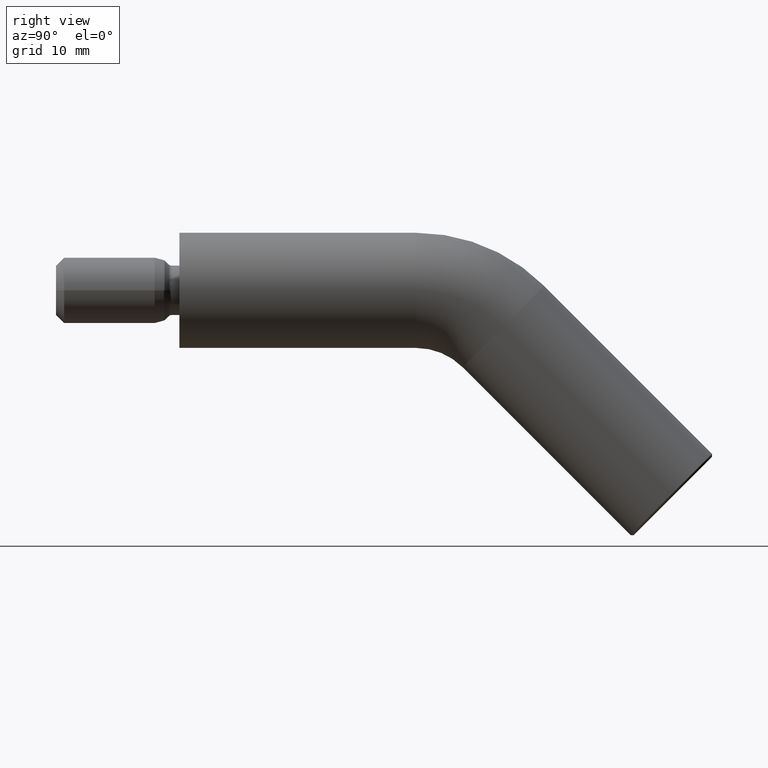
[diagram: clean part render]
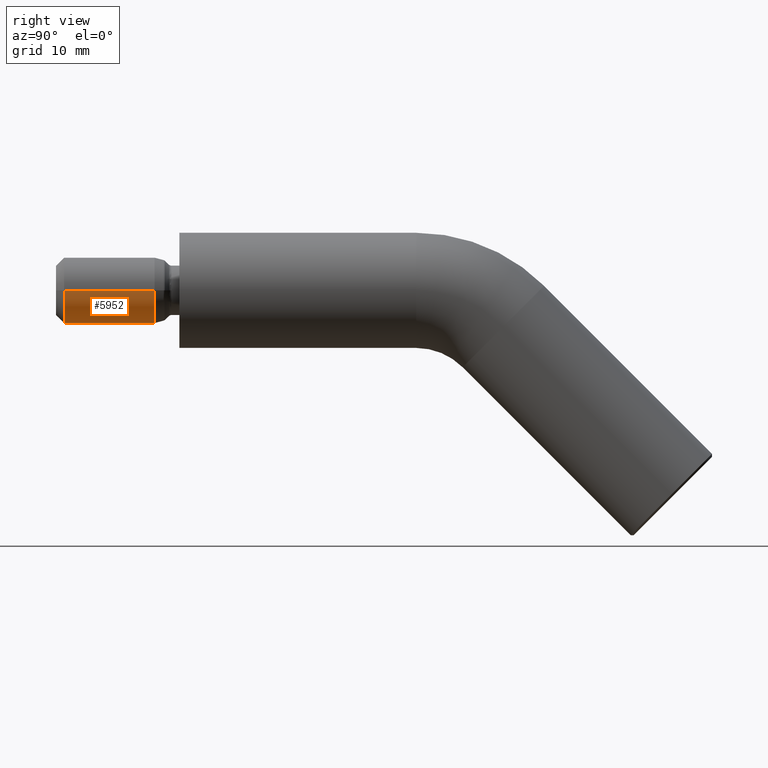
[diagram: same view with one face highlighted and labeled with its STEP entity id]
A machine part, right view. The second image highlights one B-rep face of the part: STEP entity #5952.
In plain terms, the highlighted cylindrical surface (edge-blend (fillet) strip) has radius 4 mm, axis along (-0, 1, -0).
Its self-contained STEP definition (entity closure, byte-faithful):
#4 = VECTOR ( 'NONE', #988, 1000.000000000000000 ) ;
#11 = EDGE_CURVE ( 'NONE', #5850, #978, #9368, .T. ) ;
#91 = AXIS2_PLACEMENT_3D ( 'NONE', #11596, #6225, #8835 ) ;
#818 = AXIS2_PLACEMENT_3D ( 'NONE', #6722, #3911, #9369 ) ;
#978 = VERTEX_POINT ( 'NONE', #6536 ) ;
#988 = DIRECTION ( 'NONE',  ( -1.156482317317871500E-016, 1.000000000000000000, -0.0000000000000000000 ) ) ;
#1233 = CARTESIAN_POINT ( 'NONE',  ( 4.000000000000002700, -13.99999999999999300, 4.898587196589414800E-016 ) ) ;
#1237 = CARTESIAN_POINT ( 'NONE',  ( -3.999999999999999100, -13.99999999999999300, 0.0000000000000000000 ) ) ;
#2810 = VERTEX_POINT ( 'NONE', #1237 ) ;
#3526 = CARTESIAN_POINT ( 'NONE',  ( 4.000000000000001800, -2.999999999999999100, 4.898587196589413800E-016 ) ) ;
#3542 = FACE_OUTER_BOUND ( 'NONE', #6724, .T. ) ;
#3731 = CARTESIAN_POINT ( 'NONE',  ( 4.000000000000000900, 4.625929269271487900E-016, 4.898587196589413800E-016 ) ) ;
#3911 = DIRECTION ( 'NONE',  ( -1.156482317317871500E-016, 1.000000000000000000, -0.0000000000000000000 ) ) ;
#3987 = CARTESIAN_POINT ( 'NONE',  ( -4.000000000000000900, -4.625929269271487900E-016, 0.0000000000000000000 ) ) ;
#4146 = EDGE_CURVE ( 'NONE', #7458, #5850, #5266, .T. ) ;
#4906 = CARTESIAN_POINT ( 'NONE',  ( 1.619075244245019200E-015, -13.99999999999999300, 0.0000000000000000000 ) ) ;
#5251 = ORIENTED_EDGE ( 'NONE', *, *, #11, .F. ) ;
#5266 = LINE ( 'NONE', #3731, #4 ) ;
#5284 = ORIENTED_EDGE ( 'NONE', *, *, #8511, .T. ) ;
#5513 = ORIENTED_EDGE ( 'NONE', *, *, #4146, .F. ) ;
#5850 = VERTEX_POINT ( 'NONE', #3526 ) ;
#5952 = ADVANCED_FACE ( 'NONE', ( #3542 ), #5977, .T. ) ;
#5977 = CYLINDRICAL_SURFACE ( 'NONE', #818, 4.000000000000000900 ) ;
#6225 = DIRECTION ( 'NONE',  ( -1.156482317317871500E-016, 1.000000000000000000, -0.0000000000000000000 ) ) ;
#6536 = CARTESIAN_POINT ( 'NONE',  ( -4.000000000000001800, -3.000000000000000000, 0.0000000000000000000 ) ) ;
#6722 = CARTESIAN_POINT ( 'NONE',  ( 0.0000000000000000000, 0.0000000000000000000, 0.0000000000000000000 ) ) ;
#6724 = EDGE_LOOP ( 'NONE', ( #5513, #7360, #5284, #5251 ) ) ;
#6758 = DIRECTION ( 'NONE',  ( -1.156482317317871500E-016, 1.000000000000000000, -0.0000000000000000000 ) ) ;
#7360 = ORIENTED_EDGE ( 'NONE', *, *, #9531, .T. ) ;
#7458 = VERTEX_POINT ( 'NONE', #1233 ) ;
#7796 = CIRCLE ( 'NONE', #7949, 4.000000000000000900 ) ;
#7805 = VECTOR ( 'NONE', #6758, 1000.000000000000000 ) ;
#7949 = AXIS2_PLACEMENT_3D ( 'NONE', #4906, #10410, #8444 ) ;
#8444 = DIRECTION ( 'NONE',  ( -1.000000000000000000, 0.0000000000000000000, 0.0000000000000000000 ) ) ;
#8511 = EDGE_CURVE ( 'NONE', #2810, #978, #9375, .T. ) ;
#8835 = DIRECTION ( 'NONE',  ( -1.000000000000000000, -1.084202172485503900E-016, 0.0000000000000000000 ) ) ;
#9368 = CIRCLE ( 'NONE', #91, 4.000000000000001800 ) ;
#9369 = DIRECTION ( 'NONE',  ( -1.000000000000000000, -1.156482317317871700E-016, 0.0000000000000000000 ) ) ;
#9375 = LINE ( 'NONE', #3987, #7805 ) ;
#9531 = EDGE_CURVE ( 'NONE', #7458, #2810, #7796, .T. ) ;
#10410 = DIRECTION ( 'NONE',  ( -1.156482317317871700E-016, 1.000000000000000000, -0.0000000000000000000 ) ) ;
#11596 = CARTESIAN_POINT ( 'NONE',  ( 3.469446951953613700E-016, -2.999999999999999600, 0.0000000000000000000 ) ) ;